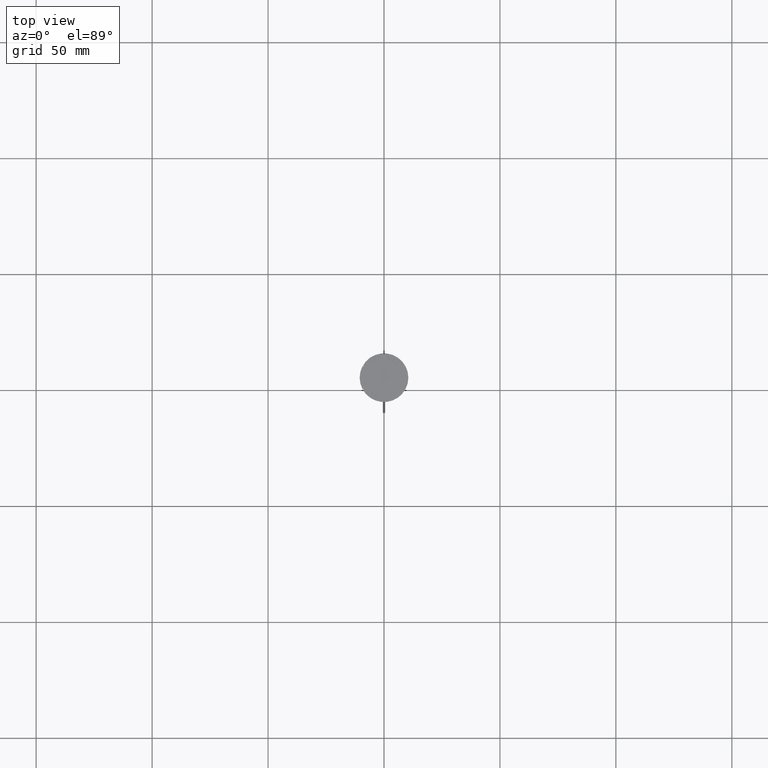
[diagram: clean part render]
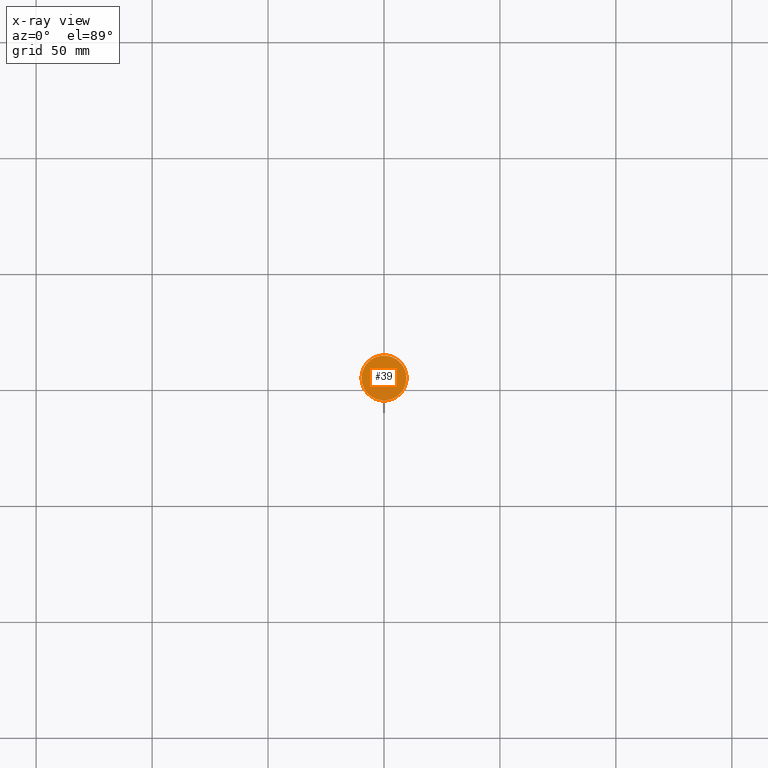
[diagram: x-ray — body ghosted, one internal face saturated and labeled with its STEP entity id]
A machine part, top view, then the same camera in x-ray: the body is ghosted and one INTERNAL B-rep face — a face not visible from any outside direction — is saturated and labeled: STEP entity #39.
In plain terms, the highlighted planar face has unit normal (0, 0, -1).
Its self-contained STEP definition (entity closure, byte-faithful):
#39 = ADVANCED_FACE ( 'NONE', ( #1811 ), #207, .F. ) ;
#99 = AXIS2_PLACEMENT_3D ( 'NONE', #577, #2135, #1925 ) ;
#207 = PLANE ( 'NONE',  #883 ) ;
#329 = EDGE_CURVE ( 'NONE', #1931, #400, #1464, .T. ) ;
#400 = VERTEX_POINT ( 'NONE', #1534 ) ;
#577 = CARTESIAN_POINT ( 'NONE',  ( 0.000000000000000000, 0.000000000000000000, -12.00000000000000000 ) ) ;
#686 = CARTESIAN_POINT ( 'NONE',  ( 0.000000000000000000, 0.000000000000000000, -12.00000000000000000 ) ) ;
#706 = CARTESIAN_POINT ( 'NONE',  ( 9.700000000000002842, 1.206277097160143024E-15, -12.00000000000000000 ) ) ;
#883 = AXIS2_PLACEMENT_3D ( 'NONE', #1047, #1983, #1786 ) ;
#1047 = CARTESIAN_POINT ( 'NONE',  ( 0.000000000000000000, 0.000000000000000000, -12.00000000000000000 ) ) ;
#1273 = DIRECTION ( 'NONE',  ( -0.000000000000000000, -0.000000000000000000, 1.000000000000000000 ) ) ;
#1464 = CIRCLE ( 'NONE', #99, 9.700000000000002842 ) ;
#1482 = EDGE_CURVE ( 'NONE', #400, #1931, #2029, .T. ) ;
#1534 = CARTESIAN_POINT ( 'NONE',  ( -9.700000000000002842, 0.000000000000000000, -12.00000000000000000 ) ) ;
#1573 = ORIENTED_EDGE ( 'NONE', *, *, #1482, .T. ) ;
#1786 = DIRECTION ( 'NONE',  ( -1.000000000000000000, 0.000000000000000000, -0.000000000000000000 ) ) ;
#1811 = FACE_OUTER_BOUND ( 'NONE', #1917, .T. ) ;
#1865 = DIRECTION ( 'NONE',  ( -1.000000000000000000, 0.000000000000000000, 0.000000000000000000 ) ) ;
#1917 = EDGE_LOOP ( 'NONE', ( #1573, #2227 ) ) ;
#1925 = DIRECTION ( 'NONE',  ( -1.000000000000000000, 0.000000000000000000, 0.000000000000000000 ) ) ;
#1931 = VERTEX_POINT ( 'NONE', #706 ) ;
#1983 = DIRECTION ( 'NONE',  ( 0.000000000000000000, 0.000000000000000000, -1.000000000000000000 ) ) ;
#2029 = CIRCLE ( 'NONE', #2360, 9.700000000000002842 ) ;
#2135 = DIRECTION ( 'NONE',  ( -0.000000000000000000, -0.000000000000000000, 1.000000000000000000 ) ) ;
#2227 = ORIENTED_EDGE ( 'NONE', *, *, #329, .T. ) ;
#2360 = AXIS2_PLACEMENT_3D ( 'NONE', #686, #1273, #1865 ) ;